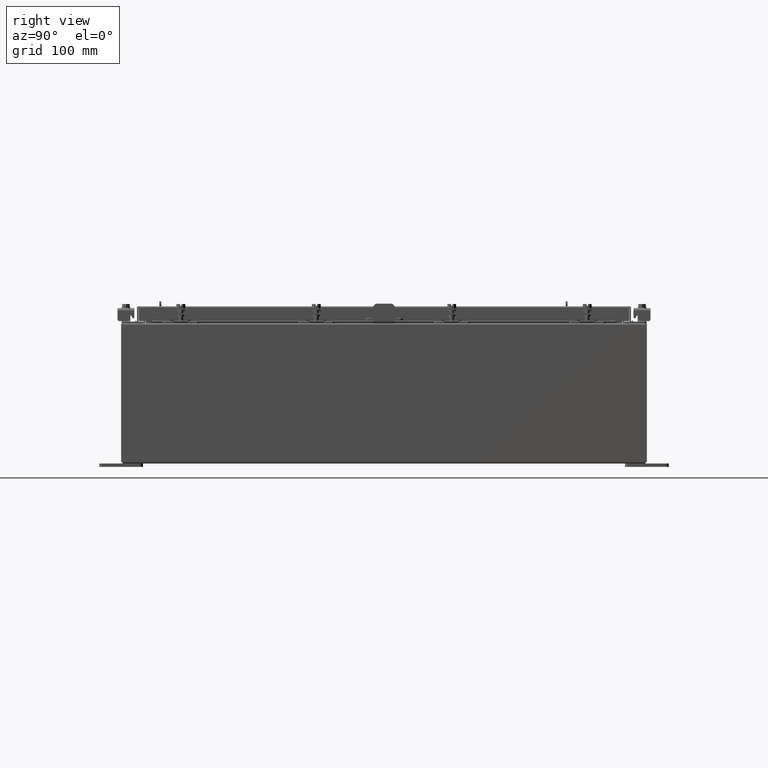
[diagram: clean part render]
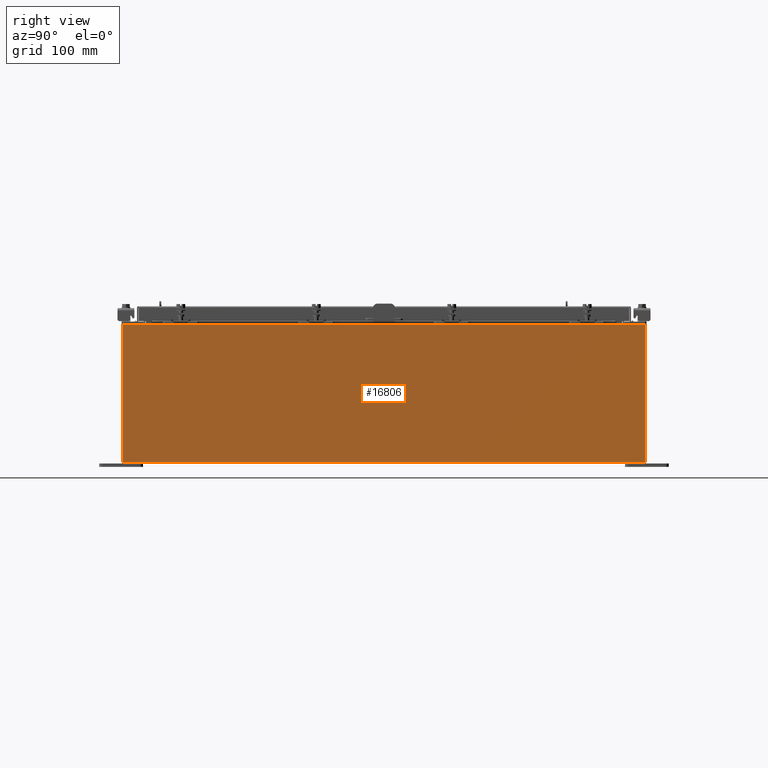
[diagram: same view with one face highlighted and labeled with its STEP entity id]
A machine part, right view. The second image highlights one B-rep face of the part: STEP entity #16806.
In plain terms, the highlighted planar face has unit normal (-1, 0, 0).
Its self-contained STEP definition (entity closure, byte-faithful):
#610 = ORIENTED_EDGE ( 'NONE', *, *, #21449, .F. ) ;
#635 = DIRECTION ( 'NONE',  ( 2.624627117933885000E-031, -1.000000000000000000, 7.321388497823866900E-017 ) ) ;
#730 = LINE ( 'NONE', #2368, #9090 ) ;
#1319 = CARTESIAN_POINT ( 'NONE',  ( 12.00000000000002500, -14.92530000000000200, 7.837599999999998300 ) ) ;
#1408 = DIRECTION ( 'NONE',  ( -0.0000000000000000000, -1.000000000000000000, -0.0000000000000000000 ) ) ;
#1995 = LINE ( 'NONE', #7748, #20428 ) ;
#2368 = CARTESIAN_POINT ( 'NONE',  ( 11.99999999999999600, -14.92530000000000000, -4.327932773236200000E-014 ) ) ;
#2435 = EDGE_CURVE ( 'NONE', #3691, #17089, #730, .T. ) ;
#3135 = EDGE_CURVE ( 'NONE', #5617, #16546, #12691, .T. ) ;
#3691 = VERTEX_POINT ( 'NONE', #1319 ) ;
#3935 = ORIENTED_EDGE ( 'NONE', *, *, #14570, .T. ) ;
#4035 = DIRECTION ( 'NONE',  ( 3.584876173029202900E-015, 0.0000000000000000000, 1.000000000000000000 ) ) ;
#5617 = VERTEX_POINT ( 'NONE', #5836 ) ;
#5836 = CARTESIAN_POINT ( 'NONE',  ( 11.99999999999999600, 14.92530000000000000, 0.01299999999999766100 ) ) ;
#6214 = DIRECTION ( 'NONE',  ( 3.584876173029202900E-015, 0.0000000000000000000, 1.000000000000000000 ) ) ;
#7743 = DIRECTION ( 'NONE',  ( -3.584876173029202900E-015, 0.0000000000000000000, -1.000000000000000000 ) ) ;
#7748 = CARTESIAN_POINT ( 'NONE',  ( 11.99999999999999600, -14.92530000000000000, 0.01299999999999984700 ) ) ;
#7949 = VECTOR ( 'NONE', #1408, 39.37007874015748100 ) ;
#8187 = ORIENTED_EDGE ( 'NONE', *, *, #3135, .T. ) ;
#9090 = VECTOR ( 'NONE', #7743, 39.37007874015748100 ) ;
#9711 = PLANE ( 'NONE',  #12133 ) ;
#11633 = EDGE_LOOP ( 'NONE', ( #3935, #19207, #610, #8187 ) ) ;
#12133 = AXIS2_PLACEMENT_3D ( 'NONE', #13285, #16921, #6214 ) ;
#12691 = LINE ( 'NONE', #12898, #16893 ) ;
#12898 = CARTESIAN_POINT ( 'NONE',  ( 11.99999999999999600, 14.92530000000000000, -4.327932773236200000E-014 ) ) ;
#13285 = CARTESIAN_POINT ( 'NONE',  ( 11.99999999999999600, 0.0000000000000000000, -4.327932773236200000E-014 ) ) ;
#13857 = CARTESIAN_POINT ( 'NONE',  ( 12.00000000000002500, 14.92530000000000200, 7.837599999999992100 ) ) ;
#14504 = CARTESIAN_POINT ( 'NONE',  ( 12.00000000000002500, 14.92530000000000200, 7.837599999999992100 ) ) ;
#14570 = EDGE_CURVE ( 'NONE', #16546, #3691, #16871, .T. ) ;
#16546 = VERTEX_POINT ( 'NONE', #14504 ) ;
#16806 = ADVANCED_FACE ( 'NONE', ( #22500 ), #9711, .F. ) ;
#16871 = LINE ( 'NONE', #13857, #7949 ) ;
#16893 = VECTOR ( 'NONE', #4035, 39.37007874015748100 ) ;
#16921 = DIRECTION ( 'NONE',  ( -1.000000000000000000, 0.0000000000000000000, 3.584876173029202900E-015 ) ) ;
#17089 = VERTEX_POINT ( 'NONE', #21252 ) ;
#19207 = ORIENTED_EDGE ( 'NONE', *, *, #2435, .T. ) ;
#20428 = VECTOR ( 'NONE', #635, 39.37007874015748100 ) ;
#21252 = CARTESIAN_POINT ( 'NONE',  ( 11.99999999999999600, -14.92530000000000000, 0.01299999999999996600 ) ) ;
#21449 = EDGE_CURVE ( 'NONE', #5617, #17089, #1995, .T. ) ;
#22500 = FACE_OUTER_BOUND ( 'NONE', #11633, .T. ) ;